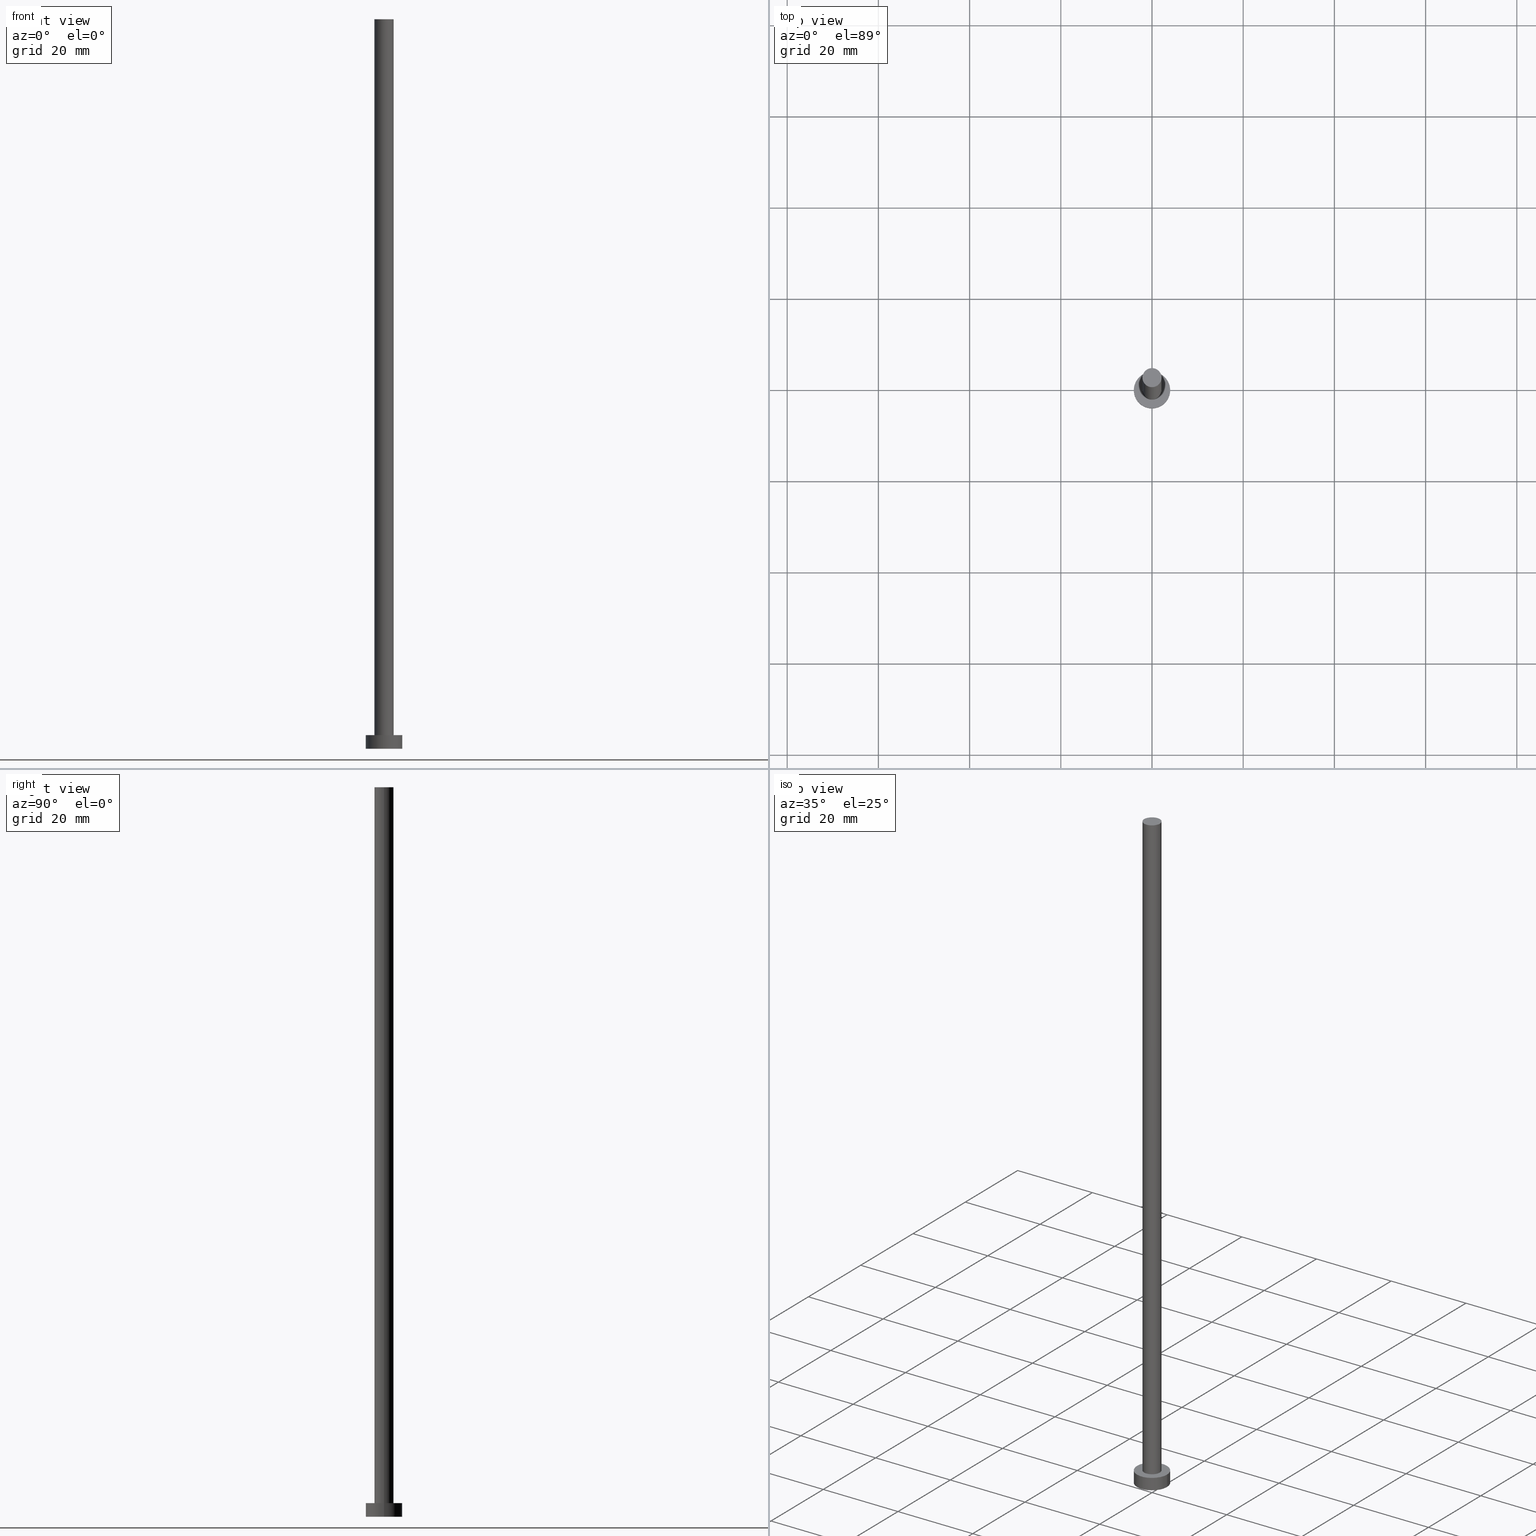
[diagram: canonical four-view strip — front | top / right | iso, engineering-drawing reading convention]
A machine part, canonical four-view strip (front | top / right | iso — engineering-drawing reading convention). The complete STEP part file that produces these views, byte-faithful:
ISO-10303-21;
HEADER;
FILE_DESCRIPTION (( 'STEP AP203' ),
    '1' );
FILE_NAME ('e658.STEP',
    '2023-02-12T12:37:12',
    ( '' ),
    ( '' ),
    'SwSTEP 2.0',
    'SolidWorks 2019',
    '' );
FILE_SCHEMA (( 'CONFIG_CONTROL_DESIGN' ));
ENDSEC;

DATA;
#1 = APPROVAL_ROLE ( '' ) ;
#2 = APPROVAL_STATUS ( 'not_yet_approved' ) ;
#3 = EDGE_CURVE ( 'NONE', #84, #190, #68, .T. ) ;
#4 = EDGE_CURVE ( 'NONE', #190, #227, #78, .T. ) ;
#5 = SECURITY_CLASSIFICATION ( '', '', #216 ) ;
#6 = ORIENTED_EDGE ( 'NONE', *, *, #217, .F. ) ;
#7 = ORIENTED_EDGE ( 'NONE', *, *, #48, .F. ) ;
#8 = CARTESIAN_POINT ( 'NONE',  ( 0.000000000000000000, 0.000000000000000000, 3.000000000000000000 ) ) ;
#9 = AXIS2_PLACEMENT_3D ( 'NONE', #69, #152, #172 ) ;
#10 = LOCAL_TIME ( 13, 37, 12.00000000000000000, #163 ) ;
#11 = EDGE_CURVE ( 'NONE', #247, #105, #115, .T. ) ;
#12 = ORIENTED_EDGE ( 'NONE', *, *, #83, .F. ) ;
#13 = CARTESIAN_POINT ( 'NONE',  ( 0.000000000000000000, 0.000000000000000000, 3.000000000000000000 ) ) ;
#14 = EDGE_LOOP ( 'NONE', ( #7, #199 ) ) ;
#15 = CARTESIAN_POINT ( 'NONE',  ( 0.000000000000000000, 0.000000000000000000, 3.000000000000000000 ) ) ;
#16 = CARTESIAN_POINT ( 'NONE',  ( 0.000000000000000000, 0.000000000000000000, 0.000000000000000000 ) ) ;
#17 = AXIS2_PLACEMENT_3D ( 'NONE', #189, #151, #90 ) ;
#18 = VERTEX_POINT ( 'NONE', #252 ) ;
#19 =( NAMED_UNIT ( * ) PLANE_ANGLE_UNIT ( ) SI_UNIT ( $, .RADIAN. ) );
#20 = DIRECTION ( 'NONE',  ( 0.000000000000000000, 0.000000000000000000, 1.000000000000000000 ) ) ;
#21 = DATE_TIME_ROLE ( 'creation_date' ) ;
#22 = VECTOR ( 'NONE', #196, 1000.000000000000000 ) ;
#23 = LOCAL_TIME ( 13, 37, 12.00000000000000000, #80 ) ;
#24 = EDGE_LOOP ( 'NONE', ( #203, #230, #221, #211 ) ) ;
#25 = ADVANCED_FACE ( 'NONE', ( #160 ), #251, .F. ) ;
#26 = PERSON_AND_ORGANIZATION_ROLE ( 'creator' ) ;
#27 = ADVANCED_FACE ( 'NONE', ( #39, #73 ), #118, .T. ) ;
#28 = CARTESIAN_POINT ( 'NONE',  ( 0.000000000000000000, 0.000000000000000000, 0.000000000000000000 ) ) ;
#29 = APPROVAL ( #197, 'NEUR�EN�' ) ;
#30 = CIRCLE ( 'NONE', #223, 2.100000000000000089 ) ;
#31 = CARTESIAN_POINT ( 'NONE',  ( -2.100000000000000089, 0.000000000000000000, 160.0000000000000000 ) ) ;
#32 = LINE ( 'NONE', #207, #125 ) ;
#33 = DIRECTION ( 'NONE',  ( -0.000000000000000000, -0.000000000000000000, -1.000000000000000000 ) ) ;
#34 =( GEOMETRIC_REPRESENTATION_CONTEXT ( 3 ) GLOBAL_UNCERTAINTY_ASSIGNED_CONTEXT ( ( #235 ) ) GLOBAL_UNIT_ASSIGNED_CONTEXT ( ( #117, #19, #253 ) ) REPRESENTATION_CONTEXT ( 'NONE', 'WORKASPACE' ) );
#35 = DIRECTION ( 'NONE',  ( -1.000000000000000000, 0.000000000000000000, 0.000000000000000000 ) ) ;
#36 = CARTESIAN_POINT ( 'NONE',  ( 4.000000000000000000, 4.898587196589412829E-16, 3.000000000000000000 ) ) ;
#37 = DIRECTION ( 'NONE',  ( 1.000000000000000000, 0.000000000000000000, 0.000000000000000000 ) ) ;
#38 = ORIENTED_EDGE ( 'NONE', *, *, #239, .T. ) ;
#39 = FACE_BOUND ( 'NONE', #14, .T. ) ;
#40 = AXIS2_PLACEMENT_3D ( 'NONE', #75, #233, #59 ) ;
#41 = DATE_AND_TIME ( #195, #95 ) ;
#42 = CARTESIAN_POINT ( 'NONE',  ( 0.000000000000000000, 0.000000000000000000, 3.000000000000000000 ) ) ;
#43 = COORDINATED_UNIVERSAL_TIME_OFFSET ( 1, 0, .AHEAD. ) ;
#44 = CARTESIAN_POINT ( 'NONE',  ( -4.000000000000000000, 0.000000000000000000, 3.000000000000000000 ) ) ;
#45 = SHAPE_DEFINITION_REPRESENTATION ( #57, #242 ) ;
#46 = CC_DESIGN_PERSON_AND_ORGANIZATION_ASSIGNMENT ( #181, #26, ( #187 ) ) ;
#47 = CIRCLE ( 'NONE', #17, 2.100000000000000089 ) ;
#48 = EDGE_CURVE ( 'NONE', #227, #190, #138, .T. ) ;
#49 = EDGE_LOOP ( 'NONE', ( #87, #114 ) ) ;
#50 = EDGE_LOOP ( 'NONE', ( #222, #112, #192, #170 ) ) ;
#51 = FACE_OUTER_BOUND ( 'NONE', #24, .T. ) ;
#52 = PERSON_AND_ORGANIZATION ( #153, #139 ) ;
#53 = DIRECTION ( 'NONE',  ( 1.000000000000000000, 0.000000000000000000, -0.000000000000000000 ) ) ;
#54 = CARTESIAN_POINT ( 'NONE',  ( 0.000000000000000000, 0.000000000000000000, 160.0000000000000000 ) ) ;
#55 = PERSON_AND_ORGANIZATION ( #153, #139 ) ;
#56 = FACE_OUTER_BOUND ( 'NONE', #50, .T. ) ;
#57 = PRODUCT_DEFINITION_SHAPE ( 'NONE', 'NONE',  #193 ) ;
#58 = AXIS2_PLACEMENT_3D ( 'NONE', #101, #20, #132 ) ;
#59 = DIRECTION ( 'NONE',  ( 1.000000000000000000, 0.000000000000000000, -0.000000000000000000 ) ) ;
#60 = DATE_AND_TIME ( #180, #10 ) ;
#61 = LINE ( 'NONE', #215, #22 ) ;
#62 = DESIGN_CONTEXT ( 'detailed design', #140, 'design' ) ;
#63 = DATE_AND_TIME ( #237, #23 ) ;
#64 = DIRECTION ( 'NONE',  ( 0.000000000000000000, 0.000000000000000000, 1.000000000000000000 ) ) ;
#65 = CALENDAR_DATE ( 2023, 12, 2 ) ;
#66 = DIRECTION ( 'NONE',  ( -0.000000000000000000, -0.000000000000000000, -1.000000000000000000 ) ) ;
#67 = ORIENTED_EDGE ( 'NONE', *, *, #3, .F. ) ;
#68 = LINE ( 'NONE', #154, #133 ) ;
#69 = CARTESIAN_POINT ( 'NONE',  ( 0.000000000000000000, 0.000000000000000000, 160.0000000000000000 ) ) ;
#70 = DIRECTION ( 'NONE',  ( 0.000000000000000000, 0.000000000000000000, 1.000000000000000000 ) ) ;
#71 = CLOSED_SHELL ( 'NONE', ( #96, #179, #141, #27, #25, #136, #108 ) ) ;
#72 = CC_DESIGN_DATE_AND_TIME_ASSIGNMENT ( #41, #21, ( #193 ) ) ;
#73 = FACE_OUTER_BOUND ( 'NONE', #49, .T. ) ;
#74 = APPROVAL_PERSON_ORGANIZATION ( #161, #176, #1 ) ;
#75 = CARTESIAN_POINT ( 'NONE',  ( 0.000000000000000000, 0.000000000000000000, 0.000000000000000000 ) ) ;
#76 = APPROVAL_DATE_TIME ( #238, #176 ) ;
#77 = DIRECTION ( 'NONE',  ( 0.000000000000000000, 0.000000000000000000, 1.000000000000000000 ) ) ;
#78 = CIRCLE ( 'NONE', #157, 2.100000000000000089 ) ;
#79 = COORDINATED_UNIVERSAL_TIME_OFFSET ( 1, 0, .AHEAD. ) ;
#80 = COORDINATED_UNIVERSAL_TIME_OFFSET ( 1, 0, .AHEAD. ) ;
#81 = PERSON_AND_ORGANIZATION ( #153, #139 ) ;
#82 = PERSON_AND_ORGANIZATION ( #153, #139 ) ;
#83 = EDGE_CURVE ( 'NONE', #105, #18, #61, .T. ) ;
#84 = VERTEX_POINT ( 'NONE', #145 ) ;
#85 = DIRECTION ( 'NONE',  ( 0.000000000000000000, 0.000000000000000000, 1.000000000000000000 ) ) ;
#86 = PRODUCT_RELATED_PRODUCT_CATEGORY ( 'detail', '', ( #93 ) ) ;
#87 = ORIENTED_EDGE ( 'NONE', *, *, #11, .T. ) ;
#88 = AXIS2_PLACEMENT_3D ( 'NONE', #15, #85, #165 ) ;
#89 = DIRECTION ( 'NONE',  ( -0.000000000000000000, -0.000000000000000000, -1.000000000000000000 ) ) ;
#90 = DIRECTION ( 'NONE',  ( 1.000000000000000000, 0.000000000000000000, 0.000000000000000000 ) ) ;
#91 = DIRECTION ( 'NONE',  ( -0.000000000000000000, -0.000000000000000000, -1.000000000000000000 ) ) ;
#92 = EDGE_CURVE ( 'NONE', #18, #124, #167, .T. ) ;
#93 = PRODUCT ( 'e658', 'e658', '', ( #150 ) ) ;
#94 = DIRECTION ( 'NONE',  ( 0.000000000000000000, 0.000000000000000000, 1.000000000000000000 ) ) ;
#95 = LOCAL_TIME ( 13, 37, 12.00000000000000000, #43 ) ;
#96 = ADVANCED_FACE ( 'NONE', ( #51 ), #209, .T. ) ;
#97 = ORIENTED_EDGE ( 'NONE', *, *, #137, .T. ) ;
#98 = CARTESIAN_POINT ( 'NONE',  ( 0.000000000000000000, 0.000000000000000000, 3.000000000000000000 ) ) ;
#99 = DIRECTION ( 'NONE',  ( 0.000000000000000000, 0.000000000000000000, 1.000000000000000000 ) ) ;
#100 = DATE_TIME_ROLE ( 'classification_date' ) ;
#101 = CARTESIAN_POINT ( 'NONE',  ( 0.000000000000000000, 0.000000000000000000, 0.000000000000000000 ) ) ;
#102 = APPLICATION_CONTEXT ( 'configuration controlled 3d designs of mechanical parts and assemblies' ) ;
#103 = PERSON_AND_ORGANIZATION ( #153, #139 ) ;
#104 = COORDINATED_UNIVERSAL_TIME_OFFSET ( 1, 0, .AHEAD. ) ;
#105 = VERTEX_POINT ( 'NONE', #36 ) ;
#106 = PERSON_AND_ORGANIZATION_ROLE ( 'design_supplier' ) ;
#107 = EDGE_LOOP ( 'NONE', ( #241, #245 ) ) ;
#108 = ADVANCED_FACE ( 'NONE', ( #183 ), #135, .T. ) ;
#109 = ORIENTED_EDGE ( 'NONE', *, *, #217, .T. ) ;
#110 = APPROVAL_STATUS ( 'not_yet_approved' ) ;
#111 = CARTESIAN_POINT ( 'NONE',  ( -4.000000000000000000, 0.000000000000000000, 0.000000000000000000 ) ) ;
#112 = ORIENTED_EDGE ( 'NONE', *, *, #83, .T. ) ;
#113 = CC_DESIGN_APPROVAL ( #176, ( #5 ) ) ;
#114 = ORIENTED_EDGE ( 'NONE', *, *, #232, .T. ) ;
#115 = CIRCLE ( 'NONE', #119, 4.000000000000000000 ) ;
#116 = EDGE_LOOP ( 'NONE', ( #67, #6, #168, #144 ) ) ;
#117 =( LENGTH_UNIT ( ) NAMED_UNIT ( * ) SI_UNIT ( .MILLI., .METRE. ) );
#118 = PLANE ( 'NONE',  #178 ) ;
#119 = AXIS2_PLACEMENT_3D ( 'NONE', #98, #174, #143 ) ;
#120 = PERSON_AND_ORGANIZATION_ROLE ( 'creator' ) ;
#121 = EDGE_CURVE ( 'NONE', #218, #227, #32, .T. ) ;
#122 = CARTESIAN_POINT ( 'NONE',  ( 0.000000000000000000, 0.000000000000000000, 3.000000000000000000 ) ) ;
#123 = APPLICATION_PROTOCOL_DEFINITION ( 'international standard', 'config_control_design', 1994, #102 ) ;
#124 = VERTEX_POINT ( 'NONE', #111 ) ;
#125 = VECTOR ( 'NONE', #33, 1000.000000000000000 ) ;
#126 = LOCAL_TIME ( 13, 37, 12.00000000000000000, #79 ) ;
#127 = PERSON_AND_ORGANIZATION ( #153, #139 ) ;
#128 = CIRCLE ( 'NONE', #88, 4.000000000000000000 ) ;
#129 = ORIENTED_EDGE ( 'NONE', *, *, #246, .T. ) ;
#130 = DIRECTION ( 'NONE',  ( -0.000000000000000000, -0.000000000000000000, -1.000000000000000000 ) ) ;
#131 = PERSON_AND_ORGANIZATION_ROLE ( 'design_owner' ) ;
#132 = DIRECTION ( 'NONE',  ( 1.000000000000000000, 0.000000000000000000, 0.000000000000000000 ) ) ;
#133 = VECTOR ( 'NONE', #91, 1000.000000000000000 ) ;
#134 = AXIS2_PLACEMENT_3D ( 'NONE', #16, #94, #255 ) ;
#135 = PLANE ( 'NONE',  #194 ) ;
#136 = ADVANCED_FACE ( 'NONE', ( #249 ), #155, .T. ) ;
#137 = EDGE_CURVE ( 'NONE', #247, #124, #226, .T. ) ;
#138 = CIRCLE ( 'NONE', #182, 2.100000000000000089 ) ;
#139 = ORGANIZATION ( 'NEUR�EN�', 'NEUR�EN�', '' ) ;
#140 = APPLICATION_CONTEXT ( 'configuration controlled 3d designs of mechanical parts and assemblies' ) ;
#141 = ADVANCED_FACE ( 'NONE', ( #191 ), #250, .T. ) ;
#142 = CARTESIAN_POINT ( 'NONE',  ( 0.000000000000000000, 0.000000000000000000, 160.0000000000000000 ) ) ;
#143 = DIRECTION ( 'NONE',  ( 1.000000000000000000, 0.000000000000000000, 0.000000000000000000 ) ) ;
#144 = ORIENTED_EDGE ( 'NONE', *, *, #48, .T. ) ;
#145 = CARTESIAN_POINT ( 'NONE',  ( 2.100000000000000089, 2.571758278209441957E-16, 160.0000000000000000 ) ) ;
#146 = APPROVAL_ROLE ( '' ) ;
#147 = APPLICATION_PROTOCOL_DEFINITION ( 'international standard', 'config_control_design', 1994, #140 ) ;
#148 = AXIS2_PLACEMENT_3D ( 'NONE', #54, #130, #35 ) ;
#149 = CC_DESIGN_SECURITY_CLASSIFICATION ( #5, ( #187 ) ) ;
#150 = MECHANICAL_CONTEXT ( 'NONE', #102, 'mechanical' ) ;
#151 = DIRECTION ( 'NONE',  ( 0.000000000000000000, 0.000000000000000000, 1.000000000000000000 ) ) ;
#152 = DIRECTION ( 'NONE',  ( -0.000000000000000000, -0.000000000000000000, -1.000000000000000000 ) ) ;
#153 = PERSON ( 'NEUR�EN�', 'NEUR�EN�', 'NEUR�EN�', ('NEUR�EN�'), ('NEUR�EN�'), ('NEUR�EN�') ) ;
#154 = CARTESIAN_POINT ( 'NONE',  ( 2.100000000000000089, 2.571758278209441957E-16, 160.0000000000000000 ) ) ;
#155 = CYLINDRICAL_SURFACE ( 'NONE', #148, 2.100000000000000089 ) ;
#156 = CC_DESIGN_PERSON_AND_ORGANIZATION_ASSIGNMENT ( #55, #120, ( #193 ) ) ;
#157 = AXIS2_PLACEMENT_3D ( 'NONE', #171, #229, #37 ) ;
#158 = DIRECTION ( 'NONE',  ( -0.000000000000000000, -0.000000000000000000, -1.000000000000000000 ) ) ;
#159 = DIRECTION ( 'NONE',  ( 1.000000000000000000, 0.000000000000000000, -0.000000000000000000 ) ) ;
#160 = FACE_OUTER_BOUND ( 'NONE', #107, .T. ) ;
#161 = PERSON_AND_ORGANIZATION ( #153, #139 ) ;
#162 = DIRECTION ( 'NONE',  ( 1.000000000000000000, 0.000000000000000000, 0.000000000000000000 ) ) ;
#163 = COORDINATED_UNIVERSAL_TIME_OFFSET ( 1, 0, .AHEAD. ) ;
#164 = CC_DESIGN_PERSON_AND_ORGANIZATION_ASSIGNMENT ( #82, #234, ( #5 ) ) ;
#165 = DIRECTION ( 'NONE',  ( 1.000000000000000000, 0.000000000000000000, 0.000000000000000000 ) ) ;
#166 = CYLINDRICAL_SURFACE ( 'NONE', #240, 4.000000000000000000 ) ;
#167 = CIRCLE ( 'NONE', #58, 4.000000000000000000 ) ;
#168 = ORIENTED_EDGE ( 'NONE', *, *, #121, .T. ) ;
#169 = DIRECTION ( 'NONE',  ( -1.000000000000000000, 0.000000000000000000, 0.000000000000000000 ) ) ;
#170 = ORIENTED_EDGE ( 'NONE', *, *, #137, .F. ) ;
#171 = CARTESIAN_POINT ( 'NONE',  ( 0.000000000000000000, 0.000000000000000000, 3.000000000000000000 ) ) ;
#172 = DIRECTION ( 'NONE',  ( -1.000000000000000000, 0.000000000000000000, 0.000000000000000000 ) ) ;
#173 = CC_DESIGN_APPROVAL ( #29, ( #187 ) ) ;
#174 = DIRECTION ( 'NONE',  ( 0.000000000000000000, 0.000000000000000000, 1.000000000000000000 ) ) ;
#175 = DIRECTION ( 'NONE',  ( 1.000000000000000000, 0.000000000000000000, 0.000000000000000000 ) ) ;
#176 = APPROVAL ( #2, 'NEUR�EN�' ) ;
#177 = AXIS2_PLACEMENT_3D ( 'NONE', #13, #158, #185 ) ;
#178 = AXIS2_PLACEMENT_3D ( 'NONE', #42, #99, #159 ) ;
#179 = ADVANCED_FACE ( 'NONE', ( #56 ), #166, .T. ) ;
#180 = CALENDAR_DATE ( 2023, 12, 2 ) ;
#181 = PERSON_AND_ORGANIZATION ( #153, #139 ) ;
#182 = AXIS2_PLACEMENT_3D ( 'NONE', #122, #77, #162 ) ;
#183 = FACE_OUTER_BOUND ( 'NONE', #202, .T. ) ;
#184 = APPROVAL_ROLE ( '' ) ;
#185 = DIRECTION ( 'NONE',  ( -1.000000000000000000, 0.000000000000000000, 0.000000000000000000 ) ) ;
#186 = VECTOR ( 'NONE', #66, 1000.000000000000000 ) ;
#187 = PRODUCT_DEFINITION_FORMATION_WITH_SPECIFIED_SOURCE ( 'LIBOVOLN�', '', #93, .NOT_KNOWN. ) ;
#188 = EDGE_LOOP ( 'NONE', ( #12, #224, #97, #38 ) ) ;
#189 = CARTESIAN_POINT ( 'NONE',  ( 0.000000000000000000, 0.000000000000000000, 160.0000000000000000 ) ) ;
#190 = VERTEX_POINT ( 'NONE', #248 ) ;
#191 = FACE_OUTER_BOUND ( 'NONE', #188, .T. ) ;
#192 = ORIENTED_EDGE ( 'NONE', *, *, #92, .T. ) ;
#193 = PRODUCT_DEFINITION ( 'NEZN�M�', '', #187, #62 ) ;
#194 = AXIS2_PLACEMENT_3D ( 'NONE', #225, #70, #53 ) ;
#195 = CALENDAR_DATE ( 2023, 12, 2 ) ;
#196 = DIRECTION ( 'NONE',  ( -0.000000000000000000, -0.000000000000000000, -1.000000000000000000 ) ) ;
#197 = APPROVAL_STATUS ( 'not_yet_approved' ) ;
#198 = MANIFOLD_SOLID_BREP ( 'P�idat vysunut�m3', #71 ) ;
#199 = ORIENTED_EDGE ( 'NONE', *, *, #4, .F. ) ;
#200 = APPROVAL_PERSON_ORGANIZATION ( #103, #29, #146 ) ;
#201 = DATE_AND_TIME ( #65, #126 ) ;
#202 = EDGE_LOOP ( 'NONE', ( #109, #129 ) ) ;
#203 = ORIENTED_EDGE ( 'NONE', *, *, #246, .F. ) ;
#204 = CC_DESIGN_APPROVAL ( #210, ( #193 ) ) ;
#205 = CARTESIAN_POINT ( 'NONE',  ( -4.000000000000000000, 0.000000000000000000, 3.000000000000000000 ) ) ;
#206 = CC_DESIGN_DATE_AND_TIME_ASSIGNMENT ( #60, #100, ( #5 ) ) ;
#207 = CARTESIAN_POINT ( 'NONE',  ( -2.100000000000000089, 0.000000000000000000, 160.0000000000000000 ) ) ;
#208 = APPROVAL_PERSON_ORGANIZATION ( #127, #210, #184 ) ;
#209 = CYLINDRICAL_SURFACE ( 'NONE', #9, 2.100000000000000089 ) ;
#210 = APPROVAL ( #110, 'NEUR�EN�' ) ;
#211 = ORIENTED_EDGE ( 'NONE', *, *, #121, .F. ) ;
#212 = CIRCLE ( 'NONE', #134, 4.000000000000000000 ) ;
#213 = DIRECTION ( 'NONE',  ( 0.000000000000000000, 0.000000000000000000, 1.000000000000000000 ) ) ;
#214 = CC_DESIGN_PERSON_AND_ORGANIZATION_ASSIGNMENT ( #81, #106, ( #187 ) ) ;
#215 = CARTESIAN_POINT ( 'NONE',  ( 4.000000000000000000, 4.898587196589412829E-16, 3.000000000000000000 ) ) ;
#216 = SECURITY_CLASSIFICATION_LEVEL ( 'unclassified' ) ;
#217 = EDGE_CURVE ( 'NONE', #218, #84, #47, .T. ) ;
#218 = VERTEX_POINT ( 'NONE', #31 ) ;
#219 = APPROVAL_DATE_TIME ( #63, #210 ) ;
#220 = LOCAL_TIME ( 13, 37, 12.00000000000000000, #104 ) ;
#221 = ORIENTED_EDGE ( 'NONE', *, *, #4, .T. ) ;
#222 = ORIENTED_EDGE ( 'NONE', *, *, #232, .F. ) ;
#223 = AXIS2_PLACEMENT_3D ( 'NONE', #142, #213, #175 ) ;
#224 = ORIENTED_EDGE ( 'NONE', *, *, #11, .F. ) ;
#225 = CARTESIAN_POINT ( 'NONE',  ( 0.000000000000000000, 0.000000000000000000, 160.0000000000000000 ) ) ;
#226 = LINE ( 'NONE', #205, #186 ) ;
#227 = VERTEX_POINT ( 'NONE', #243 ) ;
#228 = CC_DESIGN_PERSON_AND_ORGANIZATION_ASSIGNMENT ( #52, #131, ( #93 ) ) ;
#229 = DIRECTION ( 'NONE',  ( 0.000000000000000000, 0.000000000000000000, 1.000000000000000000 ) ) ;
#230 = ORIENTED_EDGE ( 'NONE', *, *, #3, .T. ) ;
#231 = AXIS2_PLACEMENT_3D ( 'NONE', #28, #64, #244 ) ;
#232 = EDGE_CURVE ( 'NONE', #105, #247, #128, .T. ) ;
#233 = DIRECTION ( 'NONE',  ( 0.000000000000000000, 0.000000000000000000, 1.000000000000000000 ) ) ;
#234 = PERSON_AND_ORGANIZATION_ROLE ( 'classification_officer' ) ;
#235 = UNCERTAINTY_MEASURE_WITH_UNIT (LENGTH_MEASURE( 1.000000000000000082E-05 ), #117, 'distance_accuracy_value', 'NONE');
#236 = APPROVAL_DATE_TIME ( #201, #29 ) ;
#237 = CALENDAR_DATE ( 2023, 12, 2 ) ;
#238 = DATE_AND_TIME ( #254, #220 ) ;
#239 = EDGE_CURVE ( 'NONE', #124, #18, #212, .T. ) ;
#240 = AXIS2_PLACEMENT_3D ( 'NONE', #8, #89, #169 ) ;
#241 = ORIENTED_EDGE ( 'NONE', *, *, #239, .F. ) ;
#242 = ADVANCED_BREP_SHAPE_REPRESENTATION ( 'e658', ( #198, #231 ), #34 ) ;
#243 = CARTESIAN_POINT ( 'NONE',  ( -2.100000000000000089, 0.000000000000000000, 3.000000000000000000 ) ) ;
#244 = DIRECTION ( 'NONE',  ( 1.000000000000000000, 0.000000000000000000, 0.000000000000000000 ) ) ;
#245 = ORIENTED_EDGE ( 'NONE', *, *, #92, .F. ) ;
#246 = EDGE_CURVE ( 'NONE', #84, #218, #30, .T. ) ;
#247 = VERTEX_POINT ( 'NONE', #44 ) ;
#248 = CARTESIAN_POINT ( 'NONE',  ( 2.100000000000000089, 2.571758278209441957E-16, 3.000000000000000000 ) ) ;
#249 = FACE_OUTER_BOUND ( 'NONE', #116, .T. ) ;
#250 = CYLINDRICAL_SURFACE ( 'NONE', #177, 4.000000000000000000 ) ;
#251 = PLANE ( 'NONE',  #40 ) ;
#252 = CARTESIAN_POINT ( 'NONE',  ( 4.000000000000000000, 4.898587196589412829E-16, 0.000000000000000000 ) ) ;
#253 =( NAMED_UNIT ( * ) SI_UNIT ( $, .STERADIAN. ) SOLID_ANGLE_UNIT ( ) );
#254 = CALENDAR_DATE ( 2023, 12, 2 ) ;
#255 = DIRECTION ( 'NONE',  ( 1.000000000000000000, 0.000000000000000000, 0.000000000000000000 ) ) ;
ENDSEC;
END-ISO-10303-21;
